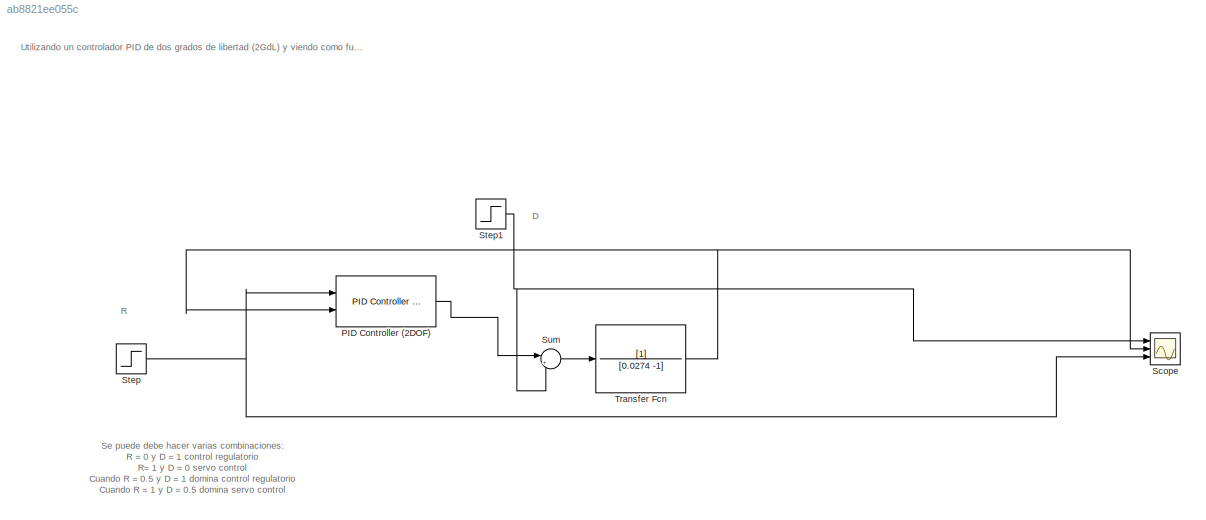
MODEL slx_ab8821ee055c
KIND model
CONFIG AbsTol = auto
CONFIG EnableMultiTasking = off
CONFIG FixedStep = auto
CONFIG MaxStep = auto
CONFIG MinStep = auto
CONFIG RelTol = 1e-3
CONFIG SampleTimeConstraint = Unconstrained
CONFIG Solver = VariableStepAuto
CONFIG SolverName = VariableStepAuto
CONFIG StartTime = 0.0
CONFIG StopTime = 10.0
BLOCK [Reference] PID Controller (2DOF)  REF=simulink/Continuous/PID Controller (2DOF)
  Ports = [2, 1]
  SourceBlock = simulink/Continuous/PID Controller (2DOF)
  SourceProductBaseCode = SL
  SourceProductName = Simulink
  SourceType = PID 2dof
BLOCK [Scope] Scope
  Floating = off
  NumInputPorts = 3
  Ports = [3]
  ScopeSpecificationString = Simulink.scopes.TimeScopeBlockCfg('CurrentConfiguration', extmgr.ConfigurationSet(extmgr.Configuration('Core','General UI',true),extmgr.Configuration('Core','Source UI',true),extmgr.Configuration('Sources','WiredSimulink',true),extmgr.Configuration('Visuals','Time Domain',true,'SerializedDisplays',{struct('MinYLimReal','-4.54834','MaxYLimReal','19.20348','YLabelReal','','MinYLimMag','0.00000','Max...<+1378ch>
BLOCK [Step] Step
  After = 5
  SampleTime = 0
BLOCK [Step] Step1
  After = 5
  SampleTime = 0
BLOCK [Sum] Sum
  IconShape = round
  InputSameDT = off
  Inputs = |++
  OutDataTypeStr = Inherit: Inherit via internal rule
  Ports = [2, 1]
  SaturateOnIntegerOverflow = off
BLOCK [TransferFcn] Transfer Fcn
  Denominator = [0.0274 -1]
ANNOTATION (root): R
ANNOTATION (root): Se puede debe hacer varias combinaciones: R = 0 y D = 1 control regulatorio R= 1 y D = 0 servo control Cuando R = 0.5 y D = 1 domina control regulatorio Cuando R = 1 y D = 0.5 domina servo control
ANNOTATION (root): Utilizando un controlador PID de dos grados de libertad (2GdL) y viendo como funciona controlando la planta cuando se alica un cambio en la entrada ya sea en el valor deseado (servo control r) o en pertubaciones (control regulatorio d)
ANNOTATION (root): D
LINE PID Controller (2DOF):1 -> Sum:1
NET Step1:1 -> Scope:1, Sum:2
NET Step:1 -> PID Controller (2DOF):1, Scope:3
LINE Sum:1 -> Transfer Fcn:1
NET Transfer Fcn:1 -> PID Controller (2DOF):2, Scope:2
note: NET lines group one-source signal fan-out (src -> all destinations, sorted); 1:1 wires keep LINE
